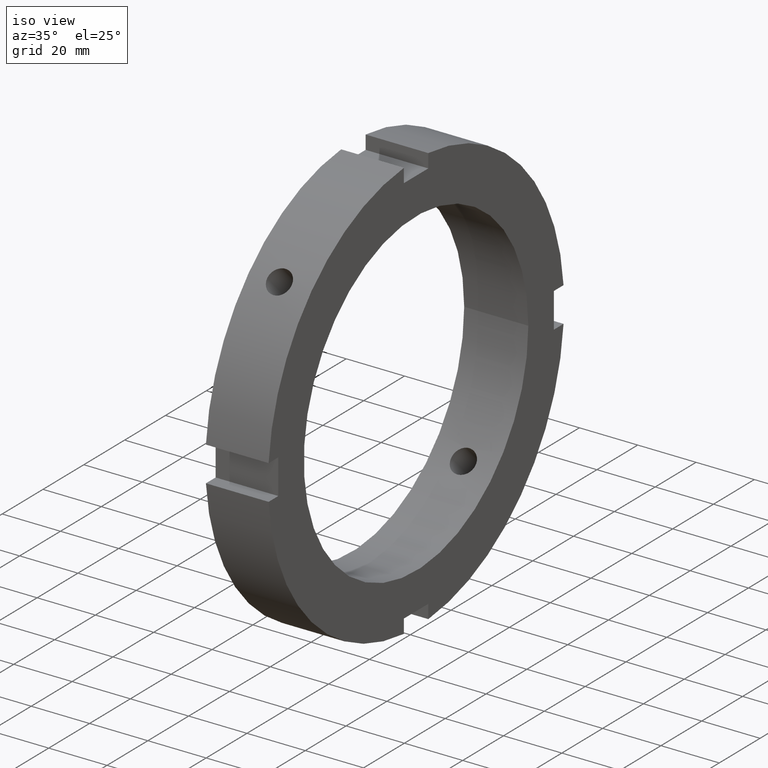
[diagram: clean part render]
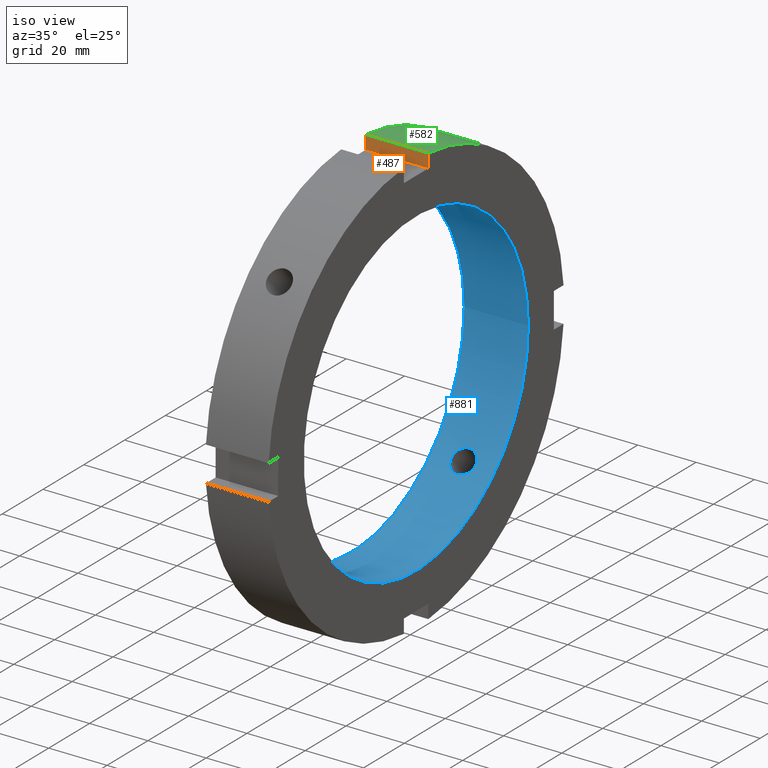
[diagram: same view with three faces highlighted in distinct colors, each labeled with its STEP entity id]
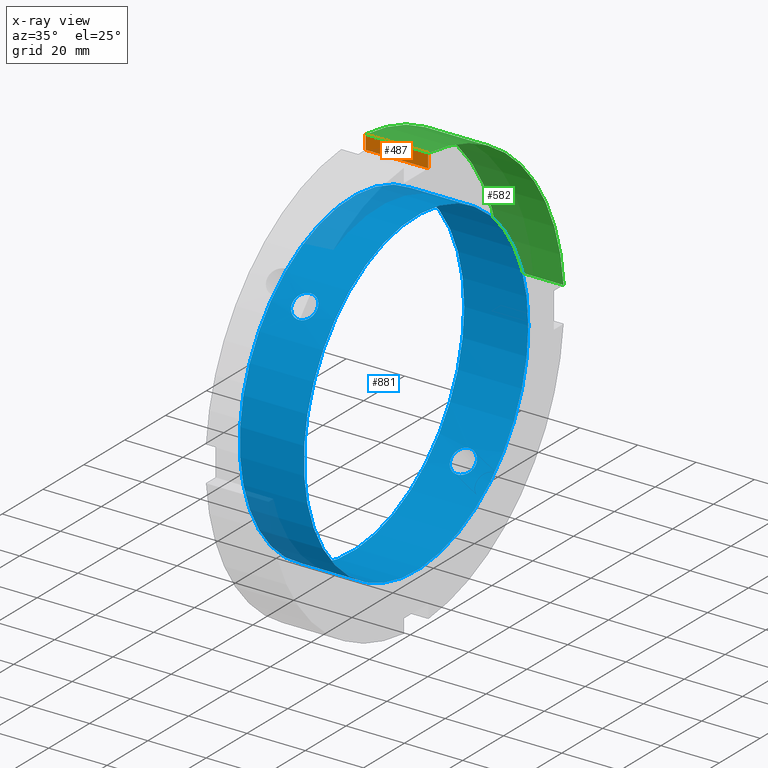
[diagram: x-ray of the same camera — body ghosted, the three highlighted faces saturated]
A machine part, iso view with three faces highlighted in distinct colors.
The next image is the same camera in x-ray (body ghosted, the three faces saturated) — at least one of them is partly hidden behind the body in this view.
Their STEP definitions:

[orange] entity #487 — the highlighted planar face has unit normal (0, 1, 0).
#448=CARTESIAN_POINT('',(21.999999999999986,6.000000000000002,67.500000000000000));
#449=DIRECTION('',(0.0,1.0,0.0));
#450=DIRECTION('',(-1.0,0.0,0.0));
#451=AXIS2_PLACEMENT_3D('',#448,#449,#450);
#452=PLANE('',#451);
#453=CARTESIAN_POINT('',(0.499999999999980,6.000000000000002,67.500000000000000));
#454=VERTEX_POINT('',#453);
#455=CARTESIAN_POINT('',(0.499999999999980,6.000000000000002,72.251297566202922));
#456=VERTEX_POINT('',#455);
#457=CARTESIAN_POINT('',(0.499999999999980,6.000000000000004,67.500000000000000));
#458=DIRECTION('',(0.0,0.0,1.0));
#459=VECTOR('',#458,4.751297566202908);
#460=LINE('',#457,#459);
#461=EDGE_CURVE('',#454,#456,#460,.T.);
#462=ORIENTED_EDGE('',*,*,#461,.F.);
#463=CARTESIAN_POINT('',(21.999999999999986,6.000000000000002,67.500000000000000));
#464=VERTEX_POINT('',#463);
#465=CARTESIAN_POINT('',(21.999999999999986,6.000000000000002,67.500000000000000));
#466=DIRECTION('',(-1.0,0.0,0.0));
#467=VECTOR('',#466,21.500000000000004);
#468=LINE('',#465,#467);
#469=EDGE_CURVE('',#464,#454,#468,.T.);
#470=ORIENTED_EDGE('',*,*,#469,.F.);
#471=CARTESIAN_POINT('',(21.999999999999986,6.000000000000001,72.251297566202922));
#472=VERTEX_POINT('',#471);
#473=CARTESIAN_POINT('',(21.999999999999986,6.000000000000004,72.251297566202908));
#474=DIRECTION('',(0.0,0.0,-1.0));
#475=VECTOR('',#474,4.751297566202908);
#476=LINE('',#473,#475);
#477=EDGE_CURVE('',#472,#464,#476,.T.);
#478=ORIENTED_EDGE('',*,*,#477,.F.);
#479=CARTESIAN_POINT('',(0.499999999999980,6.000000000000002,72.251297566202922));
#480=DIRECTION('',(1.0,0.0,0.0));
#481=VECTOR('',#480,21.500000000000007);
#482=LINE('',#479,#481);
#483=EDGE_CURVE('',#456,#472,#482,.T.);
#484=ORIENTED_EDGE('',*,*,#483,.F.);
#485=EDGE_LOOP('',(#462,#470,#478,#484));
#486=FACE_OUTER_BOUND('',#485,.T.);
#487=ADVANCED_FACE('',(#486),#452,.F.);

[blue] entity #881 — the highlighted cylindrical surface (bore or boss wall) has radius 55 mm, axis along (1, 0, 0).
#114=CARTESIAN_POINT('',(10.999999999999993,-41.739325085195766,35.816598685977254));
#115=VERTEX_POINT('',#114);
#116=CARTESIAN_POINT('',(10.999999999999993,-41.739325085195759,35.816598685977269));
#117=CARTESIAN_POINT('',(11.526073419427405,-41.739325085195759,35.816598685977269));
#118=CARTESIAN_POINT('',(12.087072729392981,-41.670857055812782,35.896874248965894));
#119=CARTESIAN_POINT('',(13.118848959453533,-41.389910479451750,36.220453047965655));
#120=CARTESIAN_POINT('',(13.589643212624086,-41.177131232271762,36.463439785272193));
#121=CARTESIAN_POINT('',(14.333082762914115,-40.679785974213623,37.017476822038773));
#122=CARTESIAN_POINT('',(14.655358308518966,-40.361968650672480,37.365463382204283));
#123=CARTESIAN_POINT('',(15.082822554690598,-39.653664595988062,38.116312141003370));
#124=CARTESIAN_POINT('',(15.187999999999992,-39.262862623551044,38.518883306969158));
#125=CARTESIAN_POINT('',(15.187999999999992,-38.518883306969130,39.262862623551079));
#126=CARTESIAN_POINT('',(15.082822554690601,-38.116312141003341,39.653664595988083));
#127=CARTESIAN_POINT('',(14.655358308518977,-37.365463382204254,40.361968650672502));
#128=CARTESIAN_POINT('',(14.333082762914113,-37.017476822038759,40.679785974213644));
#129=CARTESIAN_POINT('',(13.589643212624088,-36.463439785272179,41.177131232271776));
#130=CARTESIAN_POINT('',(13.118848959453546,-36.220453047965620,41.389910479451771));
#131=CARTESIAN_POINT('',(12.087072729392991,-35.896874248965851,41.670857055812803));
#132=CARTESIAN_POINT('',(11.526073419427407,-35.816598685977226,41.739325085195773));
#133=CARTESIAN_POINT('',(10.473926580572577,-35.816598685977226,41.739325085195773));
#134=CARTESIAN_POINT('',(9.912927270607000,-35.896874248965851,41.670857055812803));
#135=CARTESIAN_POINT('',(8.881151040546442,-36.220453047965620,41.389910479451771));
#136=CARTESIAN_POINT('',(8.410356787375900,-36.463439785272179,41.177131232271776));
#137=CARTESIAN_POINT('',(7.666917237085874,-37.017476822038752,40.679785974213644));
#138=CARTESIAN_POINT('',(7.344641691481012,-37.365463382204254,40.361968650672523));
#139=CARTESIAN_POINT('',(6.917177445309386,-38.116312141003341,39.653664595988097));
#140=CARTESIAN_POINT('',(6.811999999999991,-38.518883306969123,39.262862623551072));
#141=CARTESIAN_POINT('',(6.811999999999991,-39.262862623551044,38.518883306969158));
#142=CARTESIAN_POINT('',(6.917177445309388,-39.653664595988062,38.116312141003370));
#143=CARTESIAN_POINT('',(7.344641691481019,-40.361968650672480,37.365463382204283));
#144=CARTESIAN_POINT('',(7.666917237085869,-40.679785974213623,37.017476822038773));
#145=CARTESIAN_POINT('',(8.410356787375902,-41.177131232271762,36.463439785272193));
#146=CARTESIAN_POINT('',(8.881151040546452,-41.389910479451750,36.220453047965655));
#147=CARTESIAN_POINT('',(9.912927270607007,-41.670857055812782,35.896874248965894));
#148=CARTESIAN_POINT('',(10.473926580572579,-41.739325085195759,35.816598685977269));
#149=CARTESIAN_POINT('',(10.999999999999993,-41.739325085195759,35.816598685977269));
#150=B_SPLINE_CURVE_WITH_KNOTS('',3,(#116,#117,#118,#119,#120,#121,#122,#123,#124,#125,#126,#127,#128,#129,#130,#131,#132,#133,#134,#135,#136,#137,#138,#139,#140,#141,#142,#143,#144,#145,#146,#147,#148,#149),.UNSPECIFIED.,.T.,.U.,(4,2,2,2,2,2,2,2,2,2,2,2,2,2,2,2,4),(0.0,0.157822025828224,0.315644051656448,0.473465897601731,0.631287743547014,0.789109589492295,0.946931435437577,1.104753461265801,1.262575487094026,1.420397512922250,1.578219538750475,1.736041384695756,1.893863230641038,2.051685076586320,2.209506922531603,2.367328948359827,2.525150974188051),.UNSPECIFIED.);
#151=EDGE_CURVE('',#115,#115,#150,.T.);
#202=CARTESIAN_POINT('',(10.999999999999993,35.816598685977247,-41.739325085195773));
#203=VERTEX_POINT('',#202);
#204=CARTESIAN_POINT('',(10.999999999999993,35.816598685977247,-41.739325085195773));
#205=CARTESIAN_POINT('',(10.473926580572577,35.816598685977247,-41.739325085195773));
#206=CARTESIAN_POINT('',(9.912927270607005,35.896874248965872,-41.670857055812789));
#207=CARTESIAN_POINT('',(8.881151040546445,36.220453047965641,-41.389910479451757));
#208=CARTESIAN_POINT('',(8.410356787375902,36.463439785272193,-41.177131232271762));
#209=CARTESIAN_POINT('',(7.666917237085873,37.017476822038773,-40.679785974213623));
#210=CARTESIAN_POINT('',(7.344641691481010,37.365463382204275,-40.361968650672495));
#211=CARTESIAN_POINT('',(6.917177445309384,38.116312141003363,-39.653664595988062));
#212=CARTESIAN_POINT('',(6.811999999999989,38.518883306969151,-39.262862623551051));
#213=CARTESIAN_POINT('',(6.811999999999994,39.262862623551065,-38.518883306969144));
#214=CARTESIAN_POINT('',(6.917177445309388,39.653664595988076,-38.116312141003355));
#215=CARTESIAN_POINT('',(7.344641691481019,40.361968650672502,-37.365463382204268));
#216=CARTESIAN_POINT('',(7.666917237085873,40.679785974213644,-37.017476822038759));
#217=CARTESIAN_POINT('',(8.410356787375900,41.177131232271769,-36.463439785272186));
#218=CARTESIAN_POINT('',(8.881151040546445,41.389910479451764,-36.220453047965641));
#219=CARTESIAN_POINT('',(9.912927270607005,41.670857055812796,-35.896874248965872));
#220=CARTESIAN_POINT('',(10.473926580572579,41.739325085195759,-35.816598685977240));
#221=CARTESIAN_POINT('',(11.526073419427405,41.739325085195759,-35.816598685977240));
#222=CARTESIAN_POINT('',(12.087072729392975,41.670857055812796,-35.896874248965872));
#223=CARTESIAN_POINT('',(13.118848959453535,41.389910479451764,-36.220453047965641));
#224=CARTESIAN_POINT('',(13.589643212624086,41.177131232271769,-36.463439785272186));
#225=CARTESIAN_POINT('',(14.333082762914113,40.679785974213644,-37.017476822038759));
#226=CARTESIAN_POINT('',(14.655358308518965,40.361968650672502,-37.365463382204268));
#227=CARTESIAN_POINT('',(15.082822554690596,39.653664595988076,-38.116312141003355));
#228=CARTESIAN_POINT('',(15.187999999999992,39.262862623551065,-38.518883306969144));
#229=CARTESIAN_POINT('',(15.187999999999992,38.518883306969151,-39.262862623551051));
#230=CARTESIAN_POINT('',(15.082822554690603,38.116312141003363,-39.653664595988062));
#231=CARTESIAN_POINT('',(14.655358308518977,37.365463382204275,-40.361968650672495));
#232=CARTESIAN_POINT('',(14.333082762914113,37.017476822038773,-40.679785974213623));
#233=CARTESIAN_POINT('',(13.589643212624086,36.463439785272193,-41.177131232271762));
#234=CARTESIAN_POINT('',(13.118848959453537,36.220453047965641,-41.389910479451757));
#235=CARTESIAN_POINT('',(12.087072729392974,35.896874248965872,-41.670857055812789));
#236=CARTESIAN_POINT('',(11.526073419427407,35.816598685977247,-41.739325085195773));
#237=CARTESIAN_POINT('',(10.999999999999993,35.816598685977247,-41.739325085195773));
#238=B_SPLINE_CURVE_WITH_KNOTS('',3,(#204,#205,#206,#207,#208,#209,#210,#211,#212,#213,#214,#215,#216,#217,#218,#219,#220,#221,#222,#223,#224,#225,#226,#227,#228,#229,#230,#231,#232,#233,#234,#235,#236,#237),.UNSPECIFIED.,.T.,.U.,(4,2,2,2,2,2,2,2,2,2,2,2,2,2,2,2,4),(0.0,0.157822025828225,0.315644051656449,0.473465897601731,0.631287743547013,0.789109589492295,0.946931435437577,1.104753461265801,1.262575487094025,1.420397512922250,1.578219538750474,1.736041384695755,1.893863230641037,2.051685076586319,2.209506922531601,2.367328948359826,2.525150974188050),.UNSPECIFIED.);
#239=EDGE_CURVE('',#203,#203,#238,.T.);
#712=CARTESIAN_POINT('',(21.999999999999989,55.0,0.0));
#713=VERTEX_POINT('',#712);
#714=CARTESIAN_POINT('',(21.999999999999989,0.0,0.0));
#715=DIRECTION('',(1.0,0.0,0.0));
#716=DIRECTION('',(0.0,1.0,0.0));
#717=AXIS2_PLACEMENT_3D('',#714,#715,#716);
#718=CIRCLE('',#717,55.0);
#719=EDGE_CURVE('',#713,#713,#718,.T.);
#805=CARTESIAN_POINT('',(-1.594471E-014,55.0,0.0));
#806=VERTEX_POINT('',#805);
#807=CARTESIAN_POINT('',(-1.594645E-014,0.0,0.0));
#808=DIRECTION('',(1.0,0.0,0.0));
#809=DIRECTION('',(0.0,1.0,0.0));
#810=AXIS2_PLACEMENT_3D('',#807,#808,#809);
#811=CIRCLE('',#810,55.0);
#812=EDGE_CURVE('',#806,#806,#811,.T.);
#864=CARTESIAN_POINT('',(10.999999999999986,0.0,0.0));
#865=DIRECTION('',(1.0,0.0,0.0));
#866=DIRECTION('',(0.0,1.0,0.0));
#867=AXIS2_PLACEMENT_3D('',#864,#865,#866);
#868=CYLINDRICAL_SURFACE('',#867,55.0);
#869=ORIENTED_EDGE('',*,*,#812,.F.);
#870=EDGE_LOOP('',(#869));
#871=FACE_OUTER_BOUND('',#870,.T.);
#872=ORIENTED_EDGE('',*,*,#151,.T.);
#873=EDGE_LOOP('',(#872));
#874=FACE_BOUND('',#873,.T.);
#875=ORIENTED_EDGE('',*,*,#239,.T.);
#876=EDGE_LOOP('',(#875));
#877=FACE_BOUND('',#876,.T.);
#878=ORIENTED_EDGE('',*,*,#719,.T.);
#879=EDGE_LOOP('',(#878));
#880=FACE_BOUND('',#879,.T.);
#881=ADVANCED_FACE('',(#871,#874,#877,#880),#868,.F.);

[green] entity #582 — the highlighted cylindrical surface (partial cylindrical patch) has radius 72.5 mm, axis along (1, 0, 0).
#455=CARTESIAN_POINT('',(0.499999999999980,6.000000000000002,72.251297566202922));
#456=VERTEX_POINT('',#455);
#471=CARTESIAN_POINT('',(21.999999999999986,6.000000000000001,72.251297566202922));
#472=VERTEX_POINT('',#471);
#479=CARTESIAN_POINT('',(0.499999999999980,6.000000000000002,72.251297566202922));
#480=DIRECTION('',(1.0,0.0,0.0));
#481=VECTOR('',#480,21.500000000000007);
#482=LINE('',#479,#481);
#483=EDGE_CURVE('',#456,#472,#482,.T.);
#550=CARTESIAN_POINT('',(11.249999999999982,0.0,0.0));
#551=DIRECTION('',(1.0,0.0,0.0));
#552=DIRECTION('',(0.0,1.0,0.0));
#553=AXIS2_PLACEMENT_3D('',#550,#551,#552);
#554=CYLINDRICAL_SURFACE('',#553,72.500000000000000);
#555=ORIENTED_EDGE('',*,*,#483,.T.);
#556=CARTESIAN_POINT('',(21.999999999999986,72.251297566202922,5.999999999999997));
#557=VERTEX_POINT('',#556);
#558=CARTESIAN_POINT('',(21.999999999999986,0.0,0.0));
#559=DIRECTION('',(1.0,0.0,0.0));
#560=DIRECTION('',(0.0,1.0,0.0));
#561=AXIS2_PLACEMENT_3D('',#558,#559,#560);
#562=CIRCLE('',#561,72.500000000000000);
#563=EDGE_CURVE('',#557,#472,#562,.T.);
#564=ORIENTED_EDGE('',*,*,#563,.F.);
#565=CARTESIAN_POINT('',(0.499999999999980,72.251297566202922,5.999999999999996));
#566=VERTEX_POINT('',#565);
#567=CARTESIAN_POINT('',(21.999999999999986,72.251297566202922,5.999999999999996));
#568=DIRECTION('',(-1.0,0.0,0.0));
#569=VECTOR('',#568,21.500000000000007);
#570=LINE('',#567,#569);
#571=EDGE_CURVE('',#557,#566,#570,.T.);
#572=ORIENTED_EDGE('',*,*,#571,.T.);
#573=CARTESIAN_POINT('',(0.499999999999980,0.0,0.0));
#574=DIRECTION('',(1.0,0.0,0.0));
#575=DIRECTION('',(0.0,1.0,0.0));
#576=AXIS2_PLACEMENT_3D('',#573,#574,#575);
#577=CIRCLE('',#576,72.500000000000000);
#578=EDGE_CURVE('',#566,#456,#577,.T.);
#579=ORIENTED_EDGE('',*,*,#578,.T.);
#580=EDGE_LOOP('',(#555,#564,#572,#579));
#581=FACE_OUTER_BOUND('',#580,.T.);
#582=ADVANCED_FACE('',(#581),#554,.T.);